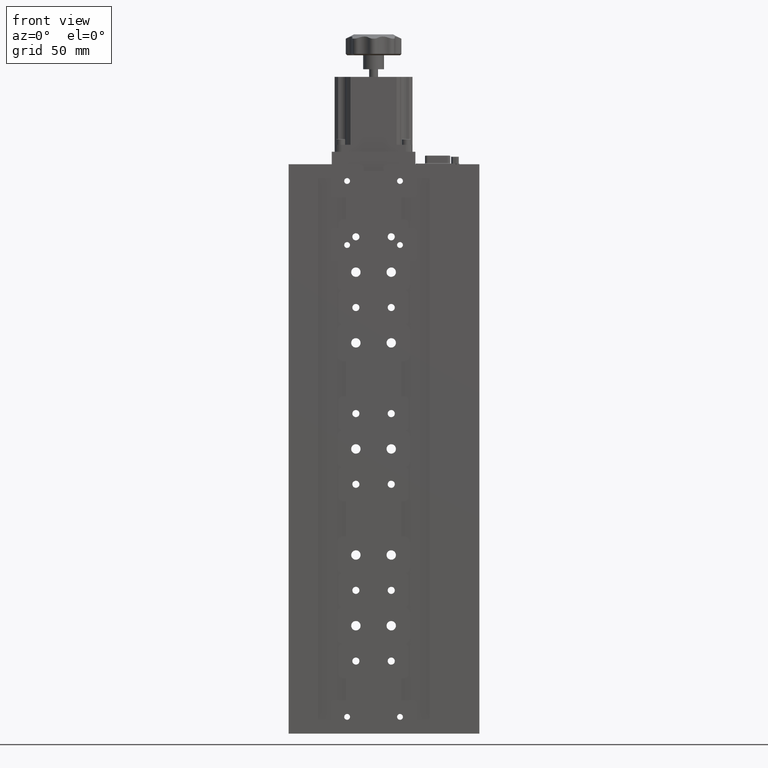
[diagram: clean part render]
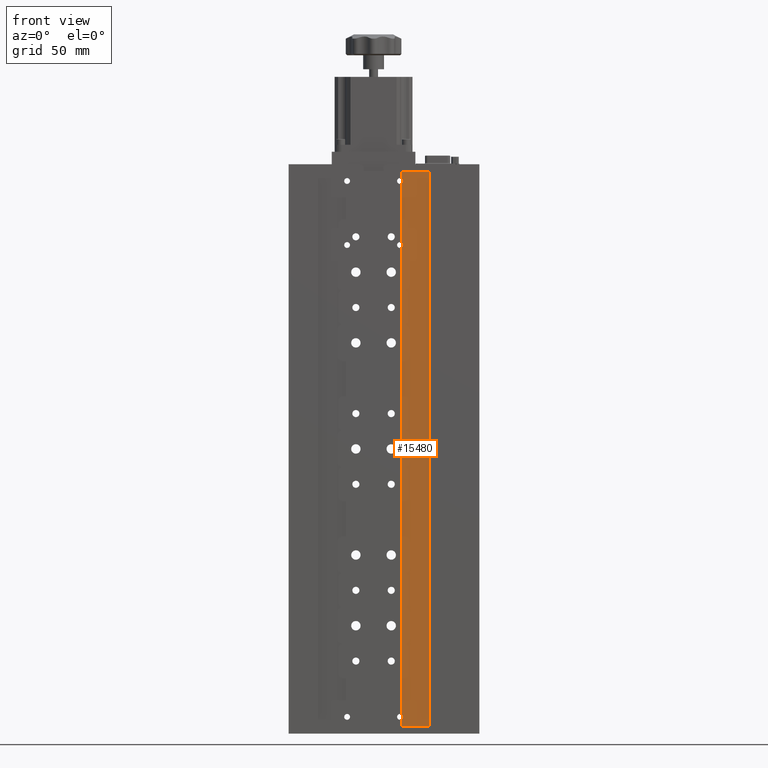
[diagram: same view with one face highlighted and labeled with its STEP entity id]
A machine part, front view. The second image highlights one B-rep face of the part: STEP entity #15480.
In plain terms, the highlighted planar face has unit normal (0, 1, 0).
Its self-contained STEP definition (entity closure, byte-faithful):
#307 = ORIENTED_EDGE ( 'NONE', *, *, #40582, .T. ) ;
#846 = PLANE ( 'NONE',  #33400 ) ;
#928 = EDGE_CURVE ( 'NONE', #25863, #40009, #35443, .T. ) ;
#1212 = CIRCLE ( 'NONE', #5924, 2.099999999999990800 ) ;
#1865 = CARTESIAN_POINT ( 'NONE',  ( 29.71988329892532800, -8.604423987207612300, -262.2607007065120700 ) ) ;
#2264 = DIRECTION ( 'NONE',  ( 0.0000000000000000000, 1.000000000000000000, 0.0000000000000000000 ) ) ;
#2509 = CARTESIAN_POINT ( 'NONE',  ( 9.719883298925328300, -8.604423987207612300, -257.1073192377739900 ) ) ;
#2608 = CARTESIAN_POINT ( 'NONE',  ( -50.28011670107466800, -8.604423987207612300, -262.2607007065120700 ) ) ;
#2764 = ORIENTED_EDGE ( 'NONE', *, *, #23590, .F. ) ;
#4420 = DIRECTION ( 'NONE',  ( 0.0000000000000000000, 1.000000000000000000, 0.0000000000000000000 ) ) ;
#5773 = CARTESIAN_POINT ( 'NONE',  ( 9.719883298925328300, -8.604423987207612300, -302.3387495612155400 ) ) ;
#5924 = AXIS2_PLACEMENT_3D ( 'NONE', #11195, #34984, #14625 ) ;
#6411 = ORIENTED_EDGE ( 'NONE', *, *, #24689, .F. ) ;
#6594 = EDGE_CURVE ( 'NONE', #27891, #31976, #22589, .T. ) ;
#7076 = VERTEX_POINT ( 'NONE', #18849 ) ;
#7962 = FACE_OUTER_BOUND ( 'NONE', #14550, .T. ) ;
#8034 = CARTESIAN_POINT ( 'NONE',  ( 29.71988329892532800, -8.604423987207612300, 136.7392992934879300 ) ) ;
#8627 = VECTOR ( 'NONE', #20172, 1000.000000000000000 ) ;
#8811 = DIRECTION ( 'NONE',  ( 0.0000000000000000000, 1.000000000000000000, 0.0000000000000000000 ) ) ;
#9085 = ORIENTED_EDGE ( 'NONE', *, *, #6594, .T. ) ;
#9237 = LINE ( 'NONE', #2608, #32253 ) ;
#9445 = DIRECTION ( 'NONE',  ( 1.000000000000000000, 0.0000000000000000000, 0.0000000000000000000 ) ) ;
#9640 = CARTESIAN_POINT ( 'NONE',  ( 9.719883298925328300, -8.604423987207612300, 81.89268076222602100 ) ) ;
#10343 = VECTOR ( 'NONE', #27072, 1000.000000000000000 ) ;
#10565 = CIRCLE ( 'NONE', #10671, 2.099999999999990800 ) ;
#10671 = AXIS2_PLACEMENT_3D ( 'NONE', #22637, #2264, #26073 ) ;
#10800 = CARTESIAN_POINT ( 'NONE',  ( 9.719883298925328300, -8.604423987207612300, 131.5859178247498600 ) ) ;
#11001 = CARTESIAN_POINT ( 'NONE',  ( -50.28011670107466800, -8.604423987207612300, 136.7392992934879300 ) ) ;
#11014 = EDGE_CURVE ( 'NONE', #29617, #31976, #26699, .T. ) ;
#11195 = CARTESIAN_POINT ( 'NONE',  ( 8.719883298925323000, -8.604423987207612300, 83.73929929348794600 ) ) ;
#11634 = VERTEX_POINT ( 'NONE', #1865 ) ;
#11814 = ORIENTED_EDGE ( 'NONE', *, *, #32195, .F. ) ;
#12264 = CARTESIAN_POINT ( 'NONE',  ( 9.719883298925328300, -8.604423987207612300, 127.8926807622260100 ) ) ;
#12271 = EDGE_CURVE ( 'NONE', #22266, #40009, #10565, .T. ) ;
#13369 = EDGE_CURVE ( 'NONE', #27891, #7076, #20469, .T. ) ;
#14436 = DIRECTION ( 'NONE',  ( 1.000000000000000000, 0.0000000000000000000, 0.0000000000000000000 ) ) ;
#14550 = EDGE_LOOP ( 'NONE', ( #2764, #14918, #27817, #307, #11814, #6411, #27125, #9085, #28935, #21389 ) ) ;
#14625 = DIRECTION ( 'NONE',  ( 0.0000000000000000000, 0.0000000000000000000, 1.000000000000000000 ) ) ;
#14918 = ORIENTED_EDGE ( 'NONE', *, *, #12271, .T. ) ;
#15480 = ADVANCED_FACE ( 'NONE', ( #7962 ), #846, .F. ) ;
#16369 = CARTESIAN_POINT ( 'NONE',  ( 9.719883298925328300, -8.604423987207612300, -253.4140821752502000 ) ) ;
#18849 = CARTESIAN_POINT ( 'NONE',  ( 9.719883298925324800, -8.604423987207612300, 136.7392992934879300 ) ) ;
#20090 = LINE ( 'NONE', #11001, #37045 ) ;
#20172 = DIRECTION ( 'NONE',  ( 0.0000000000000000000, 0.0000000000000000000, 1.000000000000000000 ) ) ;
#20467 = VERTEX_POINT ( 'NONE', #8034 ) ;
#20469 = LINE ( 'NONE', #23650, #10343 ) ;
#21389 = ORIENTED_EDGE ( 'NONE', *, *, #41552, .T. ) ;
#22266 = VERTEX_POINT ( 'NONE', #16369 ) ;
#22589 = CIRCLE ( 'NONE', #23785, 2.099999999999990800 ) ;
#22637 = CARTESIAN_POINT ( 'NONE',  ( 8.719883298925326500, -8.604423987207612300, -255.2607007065120700 ) ) ;
#23590 = EDGE_CURVE ( 'NONE', #22266, #33877, #26202, .T. ) ;
#23650 = CARTESIAN_POINT ( 'NONE',  ( 9.719883298925328300, -8.604423987207612300, -302.3387495612155400 ) ) ;
#23785 = AXIS2_PLACEMENT_3D ( 'NONE', #29154, #8811, #32545 ) ;
#24689 = EDGE_CURVE ( 'NONE', #7076, #20467, #20090, .T. ) ;
#24767 = CARTESIAN_POINT ( 'NONE',  ( -50.28011670107466800, -8.604423987207612300, 136.7392992934879300 ) ) ;
#25563 = VECTOR ( 'NONE', #40761, 1000.000000000000000 ) ;
#25863 = VERTEX_POINT ( 'NONE', #34931 ) ;
#26073 = DIRECTION ( 'NONE',  ( 0.0000000000000000000, 0.0000000000000000000, 1.000000000000000000 ) ) ;
#26202 = LINE ( 'NONE', #34598, #34140 ) ;
#26452 = VECTOR ( 'NONE', #36329, 1000.000000000000000 ) ;
#26699 = LINE ( 'NONE', #30401, #8627 ) ;
#27072 = DIRECTION ( 'NONE',  ( 0.0000000000000000000, 0.0000000000000000000, 1.000000000000000000 ) ) ;
#27125 = ORIENTED_EDGE ( 'NONE', *, *, #13369, .F. ) ;
#27817 = ORIENTED_EDGE ( 'NONE', *, *, #928, .F. ) ;
#27891 = VERTEX_POINT ( 'NONE', #10800 ) ;
#28161 = DIRECTION ( 'NONE',  ( 0.0000000000000000000, -0.0000000000000000000, 1.000000000000000000 ) ) ;
#28935 = ORIENTED_EDGE ( 'NONE', *, *, #11014, .F. ) ;
#29154 = CARTESIAN_POINT ( 'NONE',  ( 8.719883298925323000, -8.604423987207612300, 129.7392992934879300 ) ) ;
#29617 = VERTEX_POINT ( 'NONE', #32098 ) ;
#30401 = CARTESIAN_POINT ( 'NONE',  ( 9.719883298925328300, -8.604423987207612300, -302.3387495612155400 ) ) ;
#31976 = VERTEX_POINT ( 'NONE', #12264 ) ;
#32098 = CARTESIAN_POINT ( 'NONE',  ( 9.719883298925328300, -8.604423987207612300, 85.58591782474985600 ) ) ;
#32195 = EDGE_CURVE ( 'NONE', #20467, #11634, #34580, .T. ) ;
#32253 = VECTOR ( 'NONE', #9445, 1000.000000000000000 ) ;
#32545 = DIRECTION ( 'NONE',  ( 0.0000000000000000000, 0.0000000000000000000, 1.000000000000000000 ) ) ;
#33400 = AXIS2_PLACEMENT_3D ( 'NONE', #24767, #4420, #28161 ) ;
#33877 = VERTEX_POINT ( 'NONE', #9640 ) ;
#33916 = CARTESIAN_POINT ( 'NONE',  ( 29.71988329892532800, -8.604423987207612300, 136.7392992934879300 ) ) ;
#34140 = VECTOR ( 'NONE', #41429, 1000.000000000000000 ) ;
#34580 = LINE ( 'NONE', #33916, #25563 ) ;
#34598 = CARTESIAN_POINT ( 'NONE',  ( 9.719883298925328300, -8.604423987207612300, -302.3387495612155400 ) ) ;
#34931 = CARTESIAN_POINT ( 'NONE',  ( 9.719883298925328300, -8.604423987207612300, -262.2607007065120700 ) ) ;
#34984 = DIRECTION ( 'NONE',  ( 0.0000000000000000000, 1.000000000000000000, 0.0000000000000000000 ) ) ;
#35443 = LINE ( 'NONE', #5773, #26452 ) ;
#36329 = DIRECTION ( 'NONE',  ( 0.0000000000000000000, 0.0000000000000000000, 1.000000000000000000 ) ) ;
#37045 = VECTOR ( 'NONE', #14436, 1000.000000000000000 ) ;
#40009 = VERTEX_POINT ( 'NONE', #2509 ) ;
#40582 = EDGE_CURVE ( 'NONE', #25863, #11634, #9237, .T. ) ;
#40761 = DIRECTION ( 'NONE',  ( -0.0000000000000000000, -0.0000000000000000000, -1.000000000000000000 ) ) ;
#41429 = DIRECTION ( 'NONE',  ( 0.0000000000000000000, 0.0000000000000000000, 1.000000000000000000 ) ) ;
#41552 = EDGE_CURVE ( 'NONE', #29617, #33877, #1212, .T. ) ;